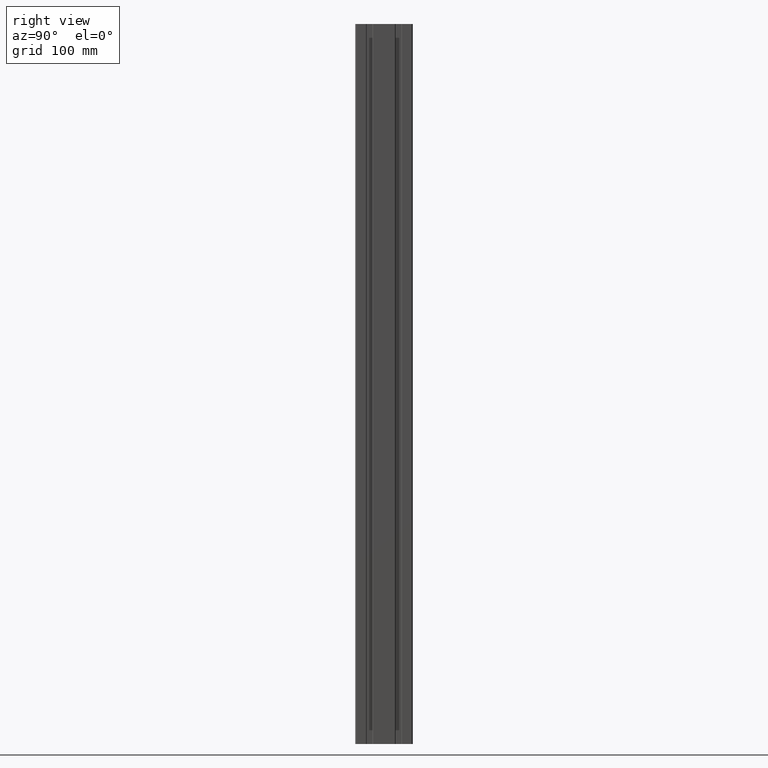
[diagram: clean part render]
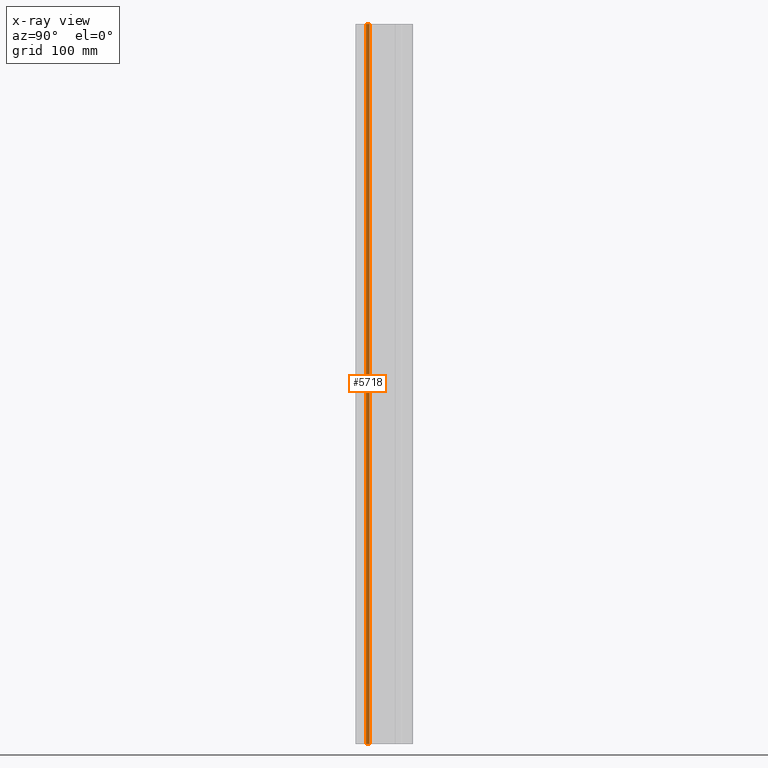
[diagram: x-ray — body ghosted, one internal face saturated and labeled with its STEP entity id]
A machine part, right view, then the same camera in x-ray: the body is ghosted and one INTERNAL B-rep face — a face not visible from any outside direction — is saturated and labeled: STEP entity #5718.
In plain terms, the highlighted planar face has unit normal (-1, -0, 0).
Its self-contained STEP definition (entity closure, byte-faithful):
#55=PLANE('',#6073);
#218=FACE_OUTER_BOUND('',#516,.T.);
#516=EDGE_LOOP('',(#3889,#3890,#3891,#3892));
#881=LINE('',#8632,#1465);
#883=LINE('',#8638,#1467);
#884=LINE('',#8640,#1468);
#885=LINE('',#8641,#1469);
#1465=VECTOR('',#6818,10.);
#1467=VECTOR('',#6824,10.);
#1468=VECTOR('',#6825,10.);
#1469=VECTOR('',#6826,10.);
#2366=VERTEX_POINT('',#8629);
#2367=VERTEX_POINT('',#8631);
#2369=VERTEX_POINT('',#8637);
#2370=VERTEX_POINT('',#8639);
#2978=EDGE_CURVE('',#2366,#2367,#881,.T.);
#2981=EDGE_CURVE('',#2369,#2366,#883,.T.);
#2982=EDGE_CURVE('',#2370,#2369,#884,.T.);
#2983=EDGE_CURVE('',#2367,#2370,#885,.T.);
#3889=ORIENTED_EDGE('',*,*,#2978,.F.);
#3890=ORIENTED_EDGE('',*,*,#2981,.F.);
#3891=ORIENTED_EDGE('',*,*,#2982,.F.);
#3892=ORIENTED_EDGE('',*,*,#2983,.F.);
#5718=ADVANCED_FACE('',(#218),#55,.F.);
#6073=AXIS2_PLACEMENT_3D('',#8636,#6822,#6823);
#6818=DIRECTION('',(0.,0.,1.));
#6822=DIRECTION('center_axis',(-1.,-6.74314622947422E-16,0.));
#6823=DIRECTION('ref_axis',(6.74314622947422E-16,-1.,0.));
#6824=DIRECTION('',(6.74314622947422E-16,-1.,0.));
#6825=DIRECTION('',(0.,0.,-1.));
#6826=DIRECTION('',(-6.74314622947422E-16,1.,0.));
#8629=CARTESIAN_POINT('',(-52.,-24.7573593128807,0.));
#8631=CARTESIAN_POINT('',(-52.,-24.7573593128807,1000.));
#8632=CARTESIAN_POINT('',(-52.,-24.7573593128807,0.));
#8636=CARTESIAN_POINT('Origin',(-52.,-12.,0.));
#8637=CARTESIAN_POINT('',(-52.,-20.,0.));
#8638=CARTESIAN_POINT('',(-52.,-6.00000000000003,0.));
#8639=CARTESIAN_POINT('',(-52.,-20.,1000.));
#8640=CARTESIAN_POINT('',(-52.,-20.,0.));
#8641=CARTESIAN_POINT('',(-52.,-6.00000000000003,1000.));